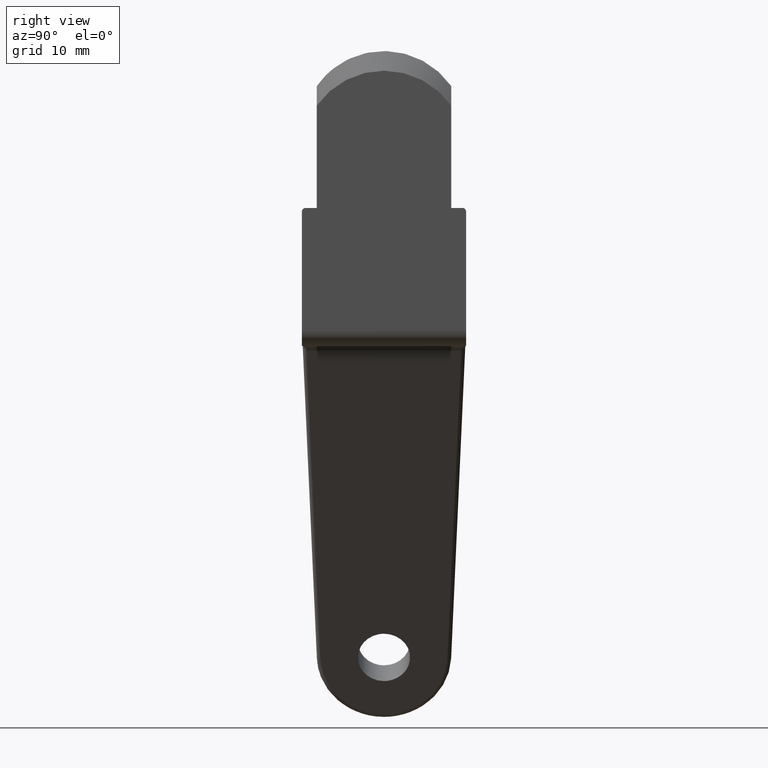
[diagram: clean part render]
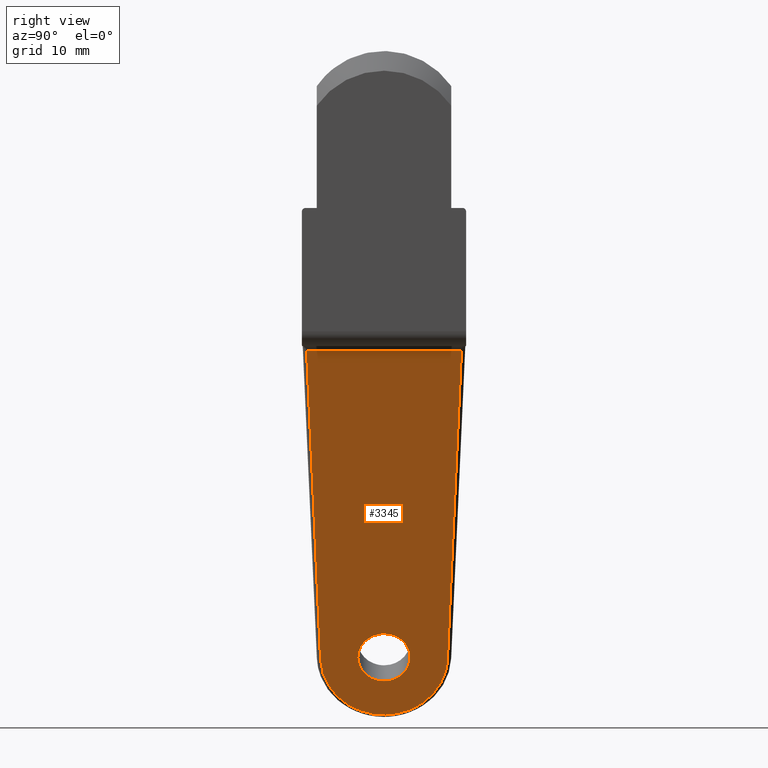
[diagram: same view with one face highlighted and labeled with its STEP entity id]
A machine part, right view. The second image highlights one B-rep face of the part: STEP entity #3345.
In plain terms, the highlighted face is a freeform B-spline surface patch.
Its self-contained STEP definition (entity closure, byte-faithful):
#79=CARTESIAN_POINT('',(-25.756834234287091,3.472931748359011,-69.796414302988239));
#80=VERTEX_POINT('',#79);
#86=CARTESIAN_POINT('',(-24.461276000197120,0.0,-67.018080651198716));
#87=VERTEX_POINT('',#86);
#88=CARTESIAN_POINT('',(-24.461276000197120,0.0,-67.018080651198716));
#89=CARTESIAN_POINT('',(-24.461276000197131,3.089445100090434,-67.018080651198730));
#90=CARTESIAN_POINT('',(-25.756834234287098,3.472931748359012,-69.796414302988239));
#98=(BOUNDED_CURVE()B_SPLINE_CURVE(2,(#88,#89,#90),.UNSPECIFIED.,.F.,.U.)B_SPLINE_CURVE_WITH_KNOTS((3,3),(0.500000000000000,0.728526071005717),.UNSPECIFIED.)CURVE()GEOMETRIC_REPRESENTATION_ITEM()RATIONAL_B_SPLINE_CURVE((1.0,0.732265053921376,0.954005430228955))REPRESENTATION_ITEM(''));
#99=EDGE_CURVE('',#87,#80,#98,.T.);
#101=CARTESIAN_POINT('',(-25.953347869545031,-3.499866730721470,-70.217839161791403));
#102=VERTEX_POINT('',#101);
#103=CARTESIAN_POINT('',(-25.953347869545034,-3.499866730721469,-70.217839161791417));
#104=CARTESIAN_POINT('',(-25.946894004311456,-3.500000000000000,-70.203998802870615));
#105=CARTESIAN_POINT('',(-25.940439893173501,-3.500000000000000,-70.190157916606196));
#106=CARTESIAN_POINT('',(-24.461276000197135,-3.500000000000000,-67.018080651198716));
#107=CARTESIAN_POINT('',(-24.461276000197120,0.0,-67.018080651198716));
#115=(BOUNDED_CURVE()B_SPLINE_CURVE(2,(#103,#104,#105,#106,#107),.UNSPECIFIED.,.F.,.U.)B_SPLINE_CURVE_WITH_KNOTS((3,2,3),(0.248460105628911,0.250000000000000,0.500000000000000),.UNSPECIFIED.)CURVE()GEOMETRIC_REPRESENTATION_ITEM()RATIONAL_B_SPLINE_CURVE((0.996414028016857,0.998195901524076,1.0,0.707106781186547,1.0))REPRESENTATION_ITEM(''));
#116=EDGE_CURVE('',#102,#87,#115,.T.);
#196=CARTESIAN_POINT('',(-27.419603786149871,0.0,-73.362235182013677));
#197=VERTEX_POINT('',#196);
#198=CARTESIAN_POINT('',(-27.419603786149871,0.0,-73.362235182013677));
#199=CARTESIAN_POINT('',(-27.419603786149867,-3.469589236371284,-73.362235182013677));
#200=CARTESIAN_POINT('',(-25.953347869545031,-3.499866730721470,-70.217839161791403));
#208=(BOUNDED_CURVE()B_SPLINE_CURVE(2,(#198,#199,#200),.UNSPECIFIED.,.F.,.U.)B_SPLINE_CURVE_WITH_KNOTS((3,3),(0.0,0.248460105628911),.UNSPECIFIED.)CURVE()GEOMETRIC_REPRESENTATION_ITEM()RATIONAL_B_SPLINE_CURVE((1.0,0.708910879662471,0.996414028016857))REPRESENTATION_ITEM(''));
#209=EDGE_CURVE('',#197,#102,#208,.T.);
#211=CARTESIAN_POINT('',(-25.756834234287098,3.472931748359012,-69.796414302988239));
#212=CARTESIAN_POINT('',(-25.848280693907629,3.499999999999999,-69.992521872231691));
#213=CARTESIAN_POINT('',(-25.940439893173501,3.500000000000000,-70.190157916606196));
#214=CARTESIAN_POINT('',(-27.419603786149878,3.500000000000000,-73.362235182013677));
#215=CARTESIAN_POINT('',(-27.419603786149871,0.0,-73.362235182013677));
#223=(BOUNDED_CURVE()B_SPLINE_CURVE(2,(#211,#212,#213,#214,#215),.UNSPECIFIED.,.F.,.U.)B_SPLINE_CURVE_WITH_KNOTS((3,2,3),(0.728526071005717,0.750000000000000,1.0),.UNSPECIFIED.)CURVE()GEOMETRIC_REPRESENTATION_ITEM()RATIONAL_B_SPLINE_CURVE((0.954005430228955,0.974841727265172,1.0,0.707106781186547,1.0))REPRESENTATION_ITEM(''));
#224=EDGE_CURVE('',#80,#197,#223,.T.);
#618=CARTESIAN_POINT('',(-6.769237794412740,10.368843335070819,-29.077381754077450));
#619=VERTEX_POINT('',#618);
#682=CARTESIAN_POINT('',(-26.087741541622751,8.492850882010821,-70.506047327118097));
#683=VERTEX_POINT('',#682);
#707=CARTESIAN_POINT('',(-26.087741541622751,8.492850882010821,-70.506047327118097));
#708=CARTESIAN_POINT('',(-6.769237794412740,10.368843335070819,-29.077381754077450));
#709=QUASI_UNIFORM_CURVE('',1,(#707,#708),.UNSPECIFIED.,.F.,.U.);
#710=EDGE_CURVE('',#683,#619,#709,.T.);
#738=CARTESIAN_POINT('',(-26.087741540930651,-8.492850881336000,-70.506047325633901));
#739=VERTEX_POINT('',#738);
#831=CARTESIAN_POINT('',(-26.087741540930651,-8.492850881336000,-70.506047325633901));
#832=CARTESIAN_POINT('',(-29.532695061129175,-8.158316338667662,-77.893774131091845));
#833=CARTESIAN_POINT('',(-29.532695061455410,-8.042974E-010,-77.893774131791474));
#834=CARTESIAN_POINT('',(-29.532695061781656,8.158316337059073,-77.893774132491117));
#835=CARTESIAN_POINT('',(-26.087741541622769,8.492850882010821,-70.506047327118097));
#843=(BOUNDED_CURVE()B_SPLINE_CURVE(2,(#831,#832,#833,#834,#835),.UNSPECIFIED.,.F.,.U.)B_SPLINE_CURVE_WITH_KNOTS((3,2,3),(0.0,0.500000000000000,1.0),.UNSPECIFIED.)CURVE()GEOMETRIC_REPRESENTATION_ITEM()RATIONAL_B_SPLINE_CURVE((1.0,0.721458710216051,1.0,0.721458710216051,1.0))REPRESENTATION_ITEM(''));
#844=EDGE_CURVE('',#739,#683,#843,.T.);
#863=CARTESIAN_POINT('',(-6.769237794412740,-10.368843334601740,-29.077381754077450));
#864=VERTEX_POINT('',#863);
#888=CARTESIAN_POINT('',(-6.769237794412740,-10.368843334601740,-29.077381754077450));
#889=CARTESIAN_POINT('',(-26.087741540930651,-8.492850881336000,-70.506047325633901));
#890=QUASI_UNIFORM_CURVE('',1,(#888,#889),.UNSPECIFIED.,.F.,.U.);
#891=EDGE_CURVE('',#864,#739,#890,.T.);
#3170=CARTESIAN_POINT('',(-6.769237794412740,-10.368843334601740,-29.077381754077450));
#3171=CARTESIAN_POINT('',(-6.769237794412740,10.368843335070819,-29.077381754077450));
#3172=QUASI_UNIFORM_CURVE('',1,(#3170,#3171),.UNSPECIFIED.,.F.,.U.);
#3173=EDGE_CURVE('',#864,#619,#3172,.T.);
#3328=CARTESIAN_POINT('',(-5.632203012761154,-11.404690474798080,-26.639002554612411));
#3329=CARTESIAN_POINT('',(-30.669730324823512,-11.404690474798080,-80.332154169340370));
#3330=CARTESIAN_POINT('',(-5.632203012761154,11.404689733629690,-26.639002554612411));
#3331=CARTESIAN_POINT('',(-30.669730324823512,11.404689733629690,-80.332154169340370));
#3332=B_SPLINE_SURFACE_WITH_KNOTS('',1,1,((#3328,#3330),(#3329,#3331)),.UNSPECIFIED.,.F.,.F.,.U.,(2,2),(2,2),(0.0,59.243837689876507),(0.0,22.809380208427768),.UNSPECIFIED.);
#3333=ORIENTED_EDGE('',*,*,#844,.T.);
#3334=ORIENTED_EDGE('',*,*,#710,.T.);
#3335=ORIENTED_EDGE('',*,*,#3173,.F.);
#3336=ORIENTED_EDGE('',*,*,#891,.T.);
#3337=EDGE_LOOP('',(#3333,#3334,#3335,#3336));
#3338=FACE_OUTER_BOUND('',#3337,.T.);
#3339=ORIENTED_EDGE('',*,*,#209,.T.);
#3340=ORIENTED_EDGE('',*,*,#116,.T.);
#3341=ORIENTED_EDGE('',*,*,#99,.T.);
#3342=ORIENTED_EDGE('',*,*,#224,.T.);
#3343=EDGE_LOOP('',(#3339,#3340,#3341,#3342));
#3344=FACE_BOUND('',#3343,.T.);
#3345=ADVANCED_FACE('',(#3338,#3344),#3332,.T.);